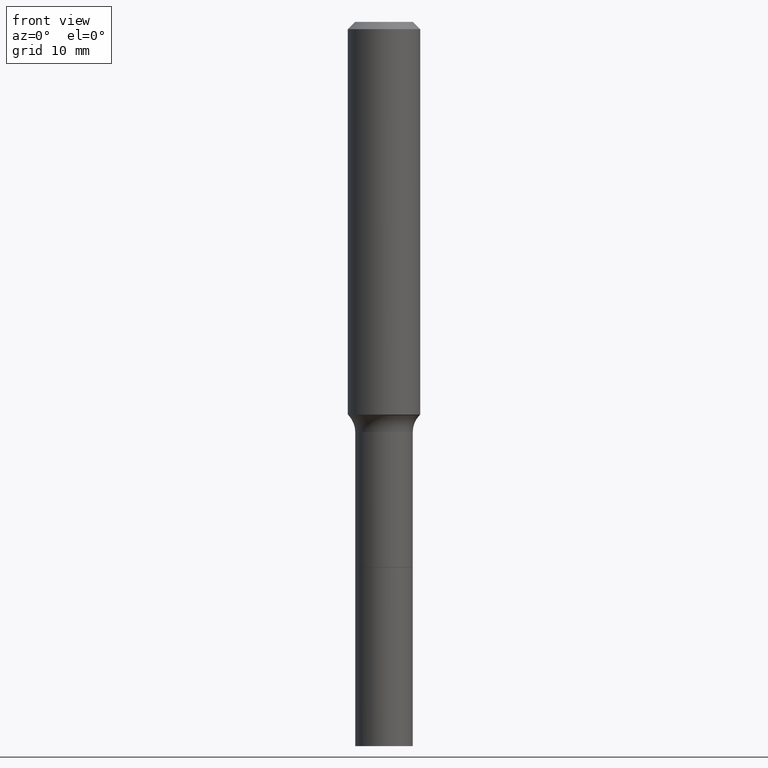
[diagram: clean part render]
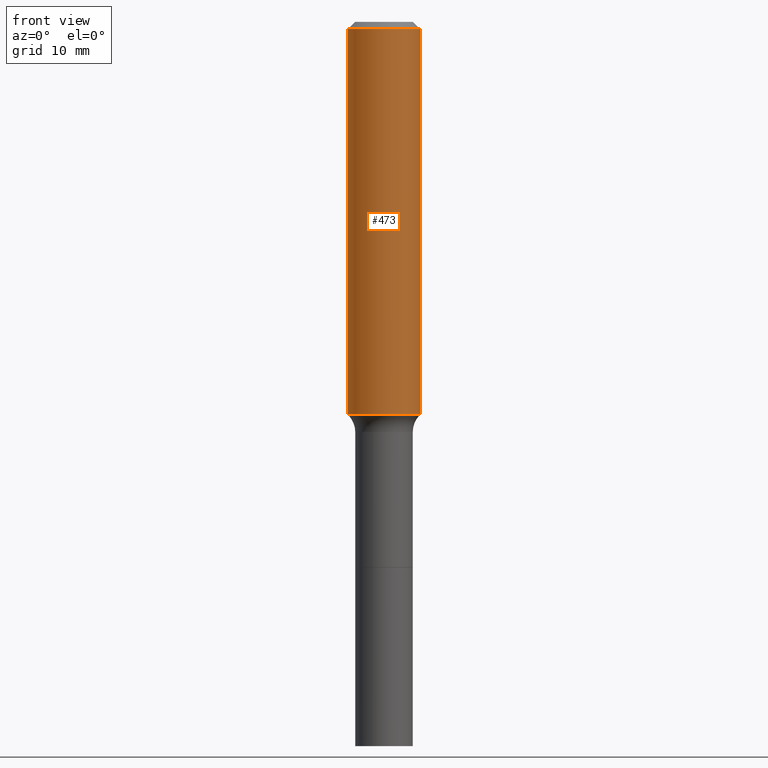
[diagram: same view with one face highlighted and labeled with its STEP entity id]
A machine part, front view. The second image highlights one B-rep face of the part: STEP entity #473.
In plain terms, the highlighted cylindrical surface (edge-blend (fillet) strip) has radius 2.9997 mm, axis along (-0, 0, 1).
Its self-contained STEP definition (entity closure, byte-faithful):
#7 = ORIENTED_EDGE ( 'NONE', *, *, #231, .F. ) ;
#9 = VERTEX_POINT ( 'NONE', #397 ) ;
#11 = VECTOR ( 'NONE', #170, 39.37007874015748143 ) ;
#19 = CIRCLE ( 'NONE', #421, 0.1180999999999999966 ) ;
#26 = DIRECTION ( 'NONE',  ( 1.000000000000000000, -6.982962677686266711E-15, 4.876176775795936353E-29 ) ) ;
#31 = AXIS2_PLACEMENT_3D ( 'NONE', #175, #218, #26 ) ;
#84 = CARTESIAN_POINT ( 'NONE',  ( -0.1181000000000001493, -3.631952688209819497E-15, -1.280574983861703098 ) ) ;
#138 = AXIS2_PLACEMENT_3D ( 'NONE', #375, #381, #461 ) ;
#149 = ORIENTED_EDGE ( 'NONE', *, *, #246, .T. ) ;
#156 = VERTEX_POINT ( 'NONE', #469 ) ;
#161 = ORIENTED_EDGE ( 'NONE', *, *, #425, .F. ) ;
#165 = CARTESIAN_POINT ( 'NONE',  ( 5.776197320209328408E-31, -8.246878922347560526E-17, -0.02362000000000014435 ) ) ;
#170 = DIRECTION ( 'NONE',  ( -2.445468806185136877E-29, 3.491481338843145188E-15, 1.000000000000000000 ) ) ;
#175 = CARTESIAN_POINT ( 'NONE',  ( 0.000000000000000000, 0.000000000000000000, 0.000000000000000000 ) ) ;
#189 = LINE ( 'NONE', #193, #342 ) ;
#191 = VERTEX_POINT ( 'NONE', #338 ) ;
#193 = CARTESIAN_POINT ( 'NONE',  ( 0.1181000000000000660, -8.246878922347485584E-16, 5.758764772215003944E-30 ) ) ;
#210 = DIRECTION ( 'NONE',  ( -2.445468806185136597E-29, 3.491481338843145583E-15, 1.000000000000000000 ) ) ;
#218 = DIRECTION ( 'NONE',  ( -2.445468806185136597E-29, 3.491481338843145583E-15, 1.000000000000000000 ) ) ;
#231 = EDGE_CURVE ( 'NONE', #322, #156, #513, .T. ) ;
#246 = EDGE_CURVE ( 'NONE', #322, #191, #286, .T. ) ;
#284 = ORIENTED_EDGE ( 'NONE', *, *, #349, .T. ) ;
#286 = CIRCLE ( 'NONE', #138, 0.1181000000000001493 ) ;
#322 = VERTEX_POINT ( 'NONE', #84 ) ;
#338 = CARTESIAN_POINT ( 'NONE',  ( 0.1181000000000001493, -5.295791551377247535E-15, -1.280574983861703098 ) ) ;
#342 = VECTOR ( 'NONE', #357, 39.37007874015748143 ) ;
#349 = EDGE_CURVE ( 'NONE', #191, #9, #189, .T. ) ;
#357 = DIRECTION ( 'NONE',  ( -2.445468806185136877E-29, 3.491481338843145188E-15, 1.000000000000000000 ) ) ;
#375 = CARTESIAN_POINT ( 'NONE',  ( 3.131606177014830076E-29, -4.471103659142498483E-15, -1.280574983861703098 ) ) ;
#380 = CYLINDRICAL_SURFACE ( 'NONE', #31, 0.1181000000000000660 ) ;
#381 = DIRECTION ( 'NONE',  ( -2.445468806185136597E-29, 3.491481338843145583E-15, 1.000000000000000000 ) ) ;
#397 = CARTESIAN_POINT ( 'NONE',  ( 0.1180999999999999966, -9.071566814582237199E-16, -0.02362000000000014435 ) ) ;
#419 = CARTESIAN_POINT ( 'NONE',  ( -0.1181000000000000660, 8.391509709326787887E-16, -5.809262341591047287E-30 ) ) ;
#421 = AXIS2_PLACEMENT_3D ( 'NONE', #165, #210, #491 ) ;
#425 = EDGE_CURVE ( 'NONE', #156, #9, #19, .T. ) ;
#461 = DIRECTION ( 'NONE',  ( 1.000000000000000000, -6.982962677686264344E-15, 0.000000000000000000 ) ) ;
#469 = CARTESIAN_POINT ( 'NONE',  ( -0.1180999999999999966, -1.437635253250307787E-15, -0.02362000000000014435 ) ) ;
#473 = ADVANCED_FACE ( 'NONE', ( #512 ), #380, .T. ) ;
#479 = EDGE_LOOP ( 'NONE', ( #7, #149, #284, #161 ) ) ;
#491 = DIRECTION ( 'NONE',  ( 1.000000000000000000, -6.982962677686266711E-15, 0.000000000000000000 ) ) ;
#512 = FACE_OUTER_BOUND ( 'NONE', #479, .T. ) ;
#513 = LINE ( 'NONE', #419, #11 ) ;